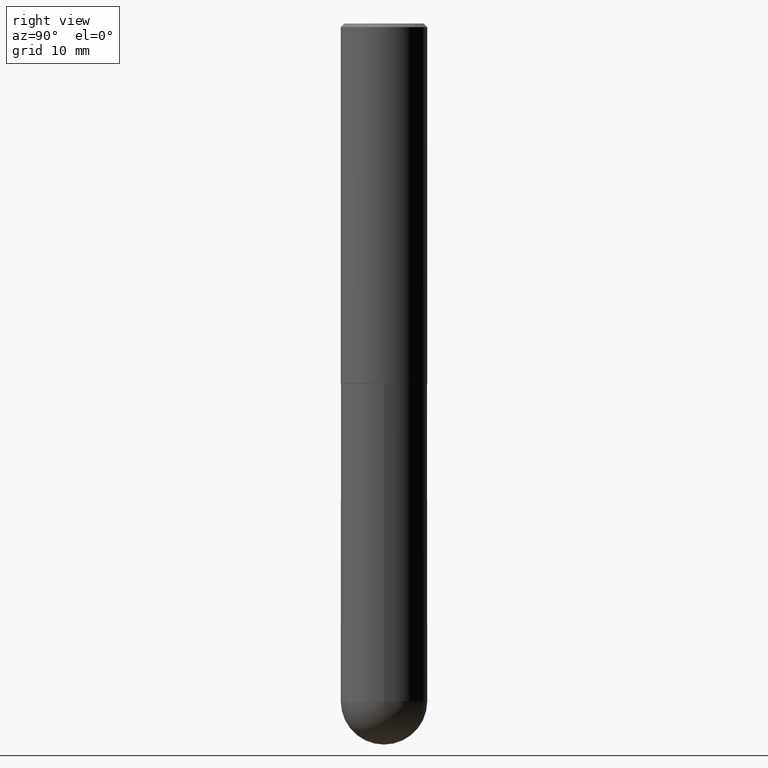
[diagram: clean part render]
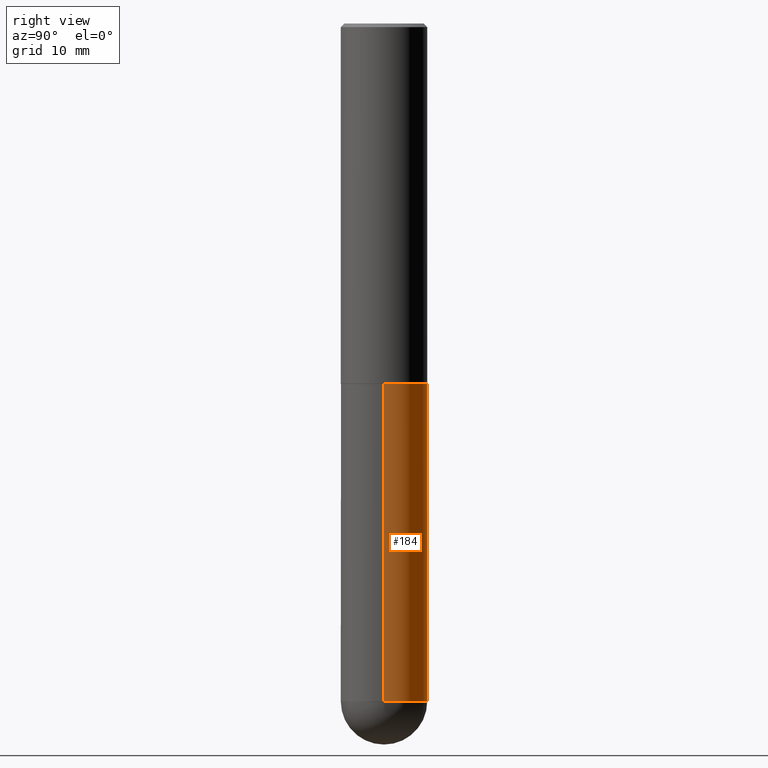
[diagram: same view with one face highlighted and labeled with its STEP entity id]
A machine part, right view. The second image highlights one B-rep face of the part: STEP entity #184.
In plain terms, the highlighted cylindrical surface (partial cylindrical patch) has radius 5.9995 mm, axis along (-0, 0, 1).
Its self-contained STEP definition (entity closure, byte-faithful):
#15 = CARTESIAN_POINT ( 'NONE',  ( 9.050190957929953666E-29, -1.292127413879071357E-14, -3.700800000000000090 ) ) ;
#40 = CARTESIAN_POINT ( 'NONE',  ( -0.2361999999999999933, 1.678301941865356591E-15, -1.161852468318208757E-29 ) ) ;
#56 = VERTEX_POINT ( 'NONE', #347 ) ;
#72 = CARTESIAN_POINT ( 'NONE',  ( 0.2361999999999999933, -1.649375784469496131E-15, 1.151752954443000088E-29 ) ) ;
#81 = ORIENTED_EDGE ( 'NONE', *, *, #332, .F. ) ;
#89 = CARTESIAN_POINT ( 'NONE',  ( 1.649375784469585666E-15, 0.2361999999999869759, -3.700800000000000978 ) ) ;
#93 = DIRECTION ( 'NONE',  ( 1.000000000000000000, -6.982962677686265133E-15, 0.000000000000000000 ) ) ;
#107 = DIRECTION ( 'NONE',  ( 1.000000000000000000, -6.982962677686266711E-15, 4.876176775795936353E-29 ) ) ;
#120 = EDGE_CURVE ( 'NONE', #56, #284, #281, .T. ) ;
#122 = EDGE_CURVE ( 'NONE', #195, #161, #249, .T. ) ;
#123 = AXIS2_PLACEMENT_3D ( 'NONE', #352, #159, #93 ) ;
#159 = DIRECTION ( 'NONE',  ( -2.445468806185136597E-29, 3.491481338843145583E-15, 1.000000000000000000 ) ) ;
#161 = VERTEX_POINT ( 'NONE', #348 ) ;
#162 = AXIS2_PLACEMENT_3D ( 'NONE', #322, #194, #392 ) ;
#163 = FACE_OUTER_BOUND ( 'NONE', #394, .T. ) ;
#168 = VECTOR ( 'NONE', #329, 39.37007874015748143 ) ;
#183 = ORIENTED_EDGE ( 'NONE', *, *, #313, .F. ) ;
#184 = ADVANCED_FACE ( 'NONE', ( #163 ), #358, .T. ) ;
#194 = DIRECTION ( 'NONE',  ( -2.445468806185136597E-29, 3.491481338843145583E-15, 1.000000000000000000 ) ) ;
#195 = VERTEX_POINT ( 'NONE', #228 ) ;
#200 = VERTEX_POINT ( 'NONE', #361 ) ;
#214 = DIRECTION ( 'NONE',  ( -2.445468806185136877E-29, 3.491481338843145188E-15, 1.000000000000000000 ) ) ;
#228 = CARTESIAN_POINT ( 'NONE',  ( -0.2361999999999999933, -8.218825635286368613E-15, -3.700800000000000090 ) ) ;
#244 = ORIENTED_EDGE ( 'NONE', *, *, #122, .T. ) ;
#249 = LINE ( 'NONE', #40, #400 ) ;
#262 = ORIENTED_EDGE ( 'NONE', *, *, #365, .T. ) ;
#281 = CIRCLE ( 'NONE', #123, 0.2361999999999999933 ) ;
#284 = VERTEX_POINT ( 'NONE', #89 ) ;
#287 = LINE ( 'NONE', #72, #168 ) ;
#291 = CARTESIAN_POINT ( 'NONE',  ( 0.000000000000000000, 0.000000000000000000, 0.000000000000000000 ) ) ;
#311 = AXIS2_PLACEMENT_3D ( 'NONE', #291, #395, #107 ) ;
#313 = EDGE_CURVE ( 'NONE', #56, #200, #287, .T. ) ;
#322 = CARTESIAN_POINT ( 'NONE',  ( 4.813905344975441835E-29, -6.872981015512731707E-15, -1.968500000000000139 ) ) ;
#327 = DIRECTION ( 'NONE',  ( 1.000000000000000000, -6.982962677686265133E-15, 0.000000000000000000 ) ) ;
#329 = DIRECTION ( 'NONE',  ( -2.445468806185136877E-29, 3.491481338843145188E-15, 1.000000000000000000 ) ) ;
#331 = AXIS2_PLACEMENT_3D ( 'NONE', #15, #393, #327 ) ;
#332 = EDGE_CURVE ( 'NONE', #200, #161, #409, .T. ) ;
#335 = ORIENTED_EDGE ( 'NONE', *, *, #120, .T. ) ;
#347 = CARTESIAN_POINT ( 'NONE',  ( 0.2361999999999999933, -1.154650336162122153E-14, -3.700800000000000090 ) ) ;
#348 = CARTESIAN_POINT ( 'NONE',  ( -0.2361999999999999933, -8.218825635286365458E-15, -1.968500000000000139 ) ) ;
#350 = CIRCLE ( 'NONE', #331, 0.2361999999999999933 ) ;
#352 = CARTESIAN_POINT ( 'NONE',  ( 9.050190957929953666E-29, -1.292127413879071357E-14, -3.700800000000000090 ) ) ;
#358 = CYLINDRICAL_SURFACE ( 'NONE', #311, 0.2361999999999999933 ) ;
#361 = CARTESIAN_POINT ( 'NONE',  ( 0.2361999999999999933, -8.522356799982228232E-15, -1.968500000000000139 ) ) ;
#365 = EDGE_CURVE ( 'NONE', #284, #195, #350, .T. ) ;
#392 = DIRECTION ( 'NONE',  ( 1.000000000000000000, -6.982962677686269077E-15, 0.000000000000000000 ) ) ;
#393 = DIRECTION ( 'NONE',  ( -2.445468806185136597E-29, 3.491481338843145583E-15, 1.000000000000000000 ) ) ;
#394 = EDGE_LOOP ( 'NONE', ( #262, #244, #81, #183, #335 ) ) ;
#395 = DIRECTION ( 'NONE',  ( -2.445468806185136597E-29, 3.491481338843145583E-15, 1.000000000000000000 ) ) ;
#400 = VECTOR ( 'NONE', #214, 39.37007874015748143 ) ;
#409 = CIRCLE ( 'NONE', #162, 0.2361999999999999933 ) ;